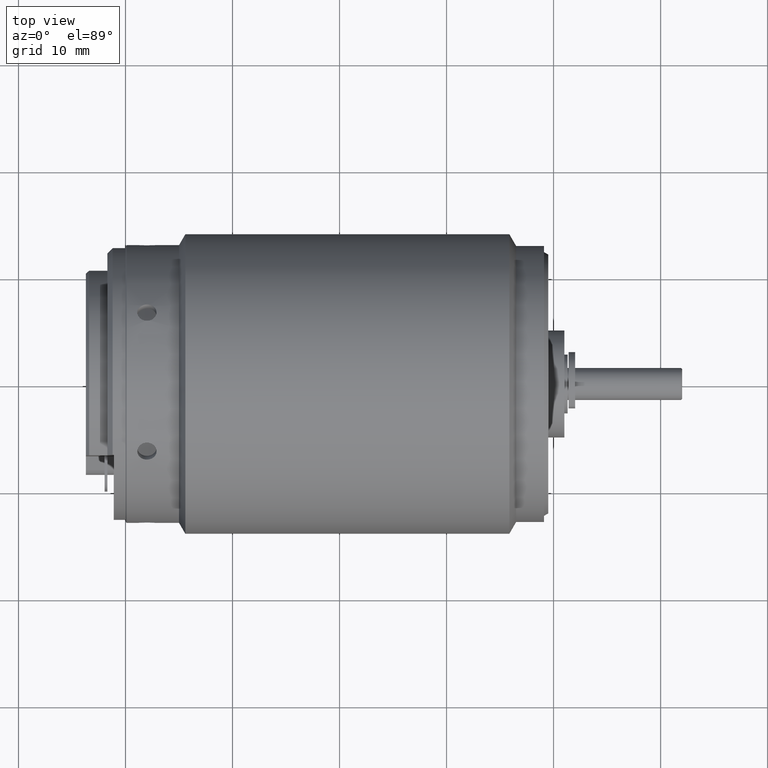
[diagram: clean part render]
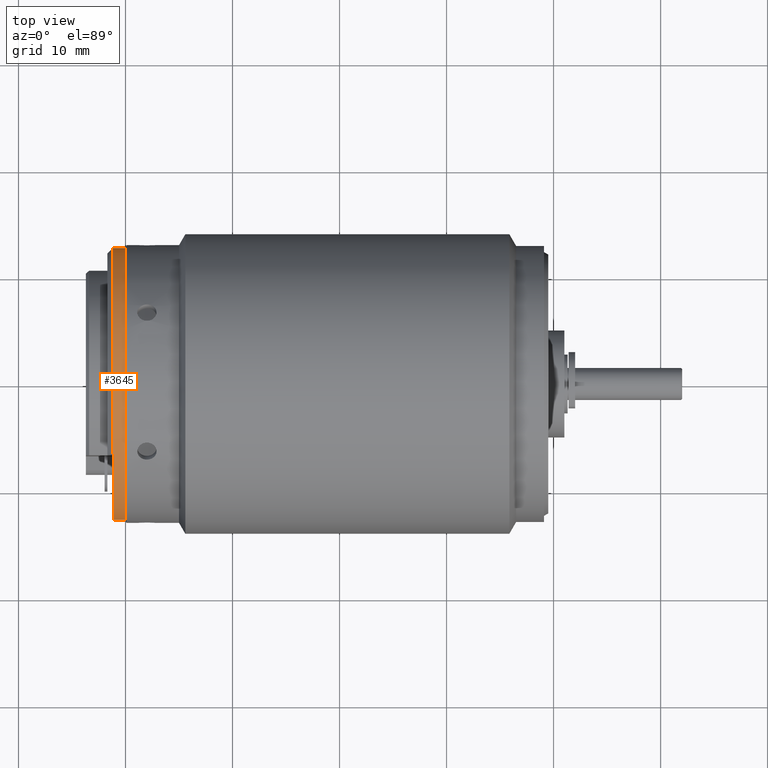
[diagram: same view with one face highlighted and labeled with its STEP entity id]
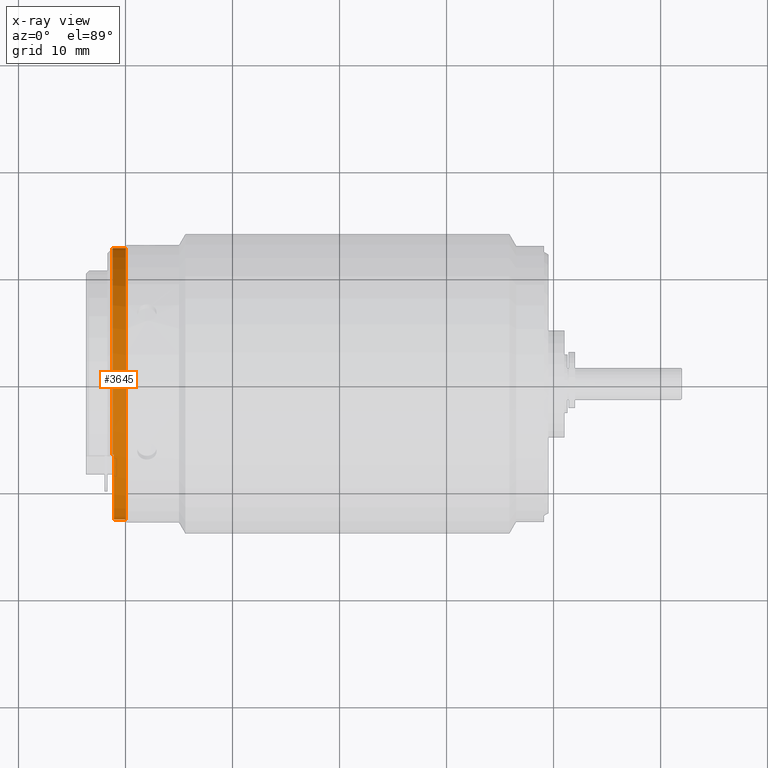
[diagram: x-ray of the same camera — body ghosted, the highlighted face saturated]
A machine part, top view. The second image highlights one B-rep face of the part: STEP entity #3645.
The next image is the same camera in x-ray: the body ghosted, the highlighted face saturated — about 0% of this face is hidden behind the body in this view.
In plain terms, the highlighted cylindrical surface (partial cylindrical patch) has radius 12.7 mm, axis along (-1, 0, 0).
Its self-contained STEP definition (entity closure, byte-faithful):
#42=DIRECTION('',(9.999999999972E-1,-1.030284076318E-12,-2.369850213081E-6));
#43=VECTOR('',#42,1.000002805570E-1);
#44=CARTESIAN_POINT('',(-1.200000280557E0,-6.8E0,1.072613654043E1));
#45=LINE('',#44,#43);
#188=CARTESIAN_POINT('',(-1.1E0,0.E0,0.E0));
#189=DIRECTION('',(1.E0,0.E0,0.E0));
#190=DIRECTION('',(0.E0,-5.354330708662E-1,8.445776616883E-1));
#191=AXIS2_PLACEMENT_3D('',#188,#189,#190);
#233=CARTESIAN_POINT('',(0.E0,0.E0,0.E0));
#234=DIRECTION('',(-1.E0,0.E0,0.E0));
#235=DIRECTION('',(0.E0,-1.E0,0.E0));
#236=AXIS2_PLACEMENT_3D('',#233,#234,#235);
#1357=DIRECTION('',(-1.E0,0.E0,-7.243229585142E-13));
#1358=VECTOR('',#1357,1.1E0);
#1359=CARTESIAN_POINT('',(0.E0,-1.27E1,0.E0));
#1360=LINE('',#1359,#1358);
#1361=DIRECTION('',(1.E0,4.514906966811E-13,0.E0));
#1362=VECTOR('',#1361,1.199999999999E0);
#1363=CARTESIAN_POINT('',(-1.199999999999E0,1.27E1,0.E0));
#1364=LINE('',#1363,#1362);
#1370=CARTESIAN_POINT('',(-1.199999999998E0,0.E0,0.E0));
#1371=DIRECTION('',(1.E0,0.E0,0.E0));
#1372=DIRECTION('',(0.E0,1.E0,0.E0));
#1373=AXIS2_PLACEMENT_3D('',#1370,#1371,#1372);
#1939=CARTESIAN_POINT('',(0.E0,1.27E1,0.E0));
#1940=CARTESIAN_POINT('',(0.E0,-1.27E1,0.E0));
#1941=VERTEX_POINT('',#1939);
#1942=VERTEX_POINT('',#1940);
#1947=CARTESIAN_POINT('',(-1.1E0,-1.27E1,-1.198152688175E-12));
#1948=VERTEX_POINT('',#1947);
#1949=CARTESIAN_POINT('',(-1.1E0,-6.800000000001E0,1.072613630344E1));
#1950=VERTEX_POINT('',#1949);
#1951=CARTESIAN_POINT('',(-1.200000280557E0,-6.8E0,1.072613654043E1));
#1952=VERTEX_POINT('',#1951);
#1953=CARTESIAN_POINT('',(-1.199999999999E0,1.27E1,0.E0));
#1954=VERTEX_POINT('',#1953);
#3631=CARTESIAN_POINT('',(8.201704159378E-2,0.E0,0.E0));
#3632=DIRECTION('',(-1.E0,0.E0,0.E0));
#3633=DIRECTION('',(0.E0,1.E0,0.E0));
#3634=AXIS2_PLACEMENT_3D('',#3631,#3632,#3633);
#3635=CYLINDRICAL_SURFACE('',#3634,1.27E1);
#3636=ORIENTED_EDGE('',*,*,#2359,.F.);
#3637=ORIENTED_EDGE('',*,*,#2340,.T.);
#3638=ORIENTED_EDGE('',*,*,#2310,.F.);
#3639=ORIENTED_EDGE('',*,*,#2129,.F.);
#3641=ORIENTED_EDGE('',*,*,#3640,.F.);
#3642=ORIENTED_EDGE('',*,*,#2334,.T.);
#3643=EDGE_LOOP('',(#3636,#3637,#3638,#3639,#3641,#3642));
#3644=FACE_OUTER_BOUND('',#3643,.F.);
#3645=ADVANCED_FACE('',(#3644),#3635,.T.);
#192=CIRCLE('',#191,1.27E1);
#237=CIRCLE('',#236,1.27E1);
#1374=CIRCLE('',#1373,1.27E1);
#2129=EDGE_CURVE('',#1952,#1950,#45,.T.);
#2310=EDGE_CURVE('',#1950,#1948,#192,.T.);
#2334=EDGE_CURVE('',#1954,#1941,#1364,.T.);
#2340=EDGE_CURVE('',#1942,#1948,#1360,.T.);
#2359=EDGE_CURVE('',#1942,#1941,#237,.T.);
#3640=EDGE_CURVE('',#1954,#1952,#1374,.T.);